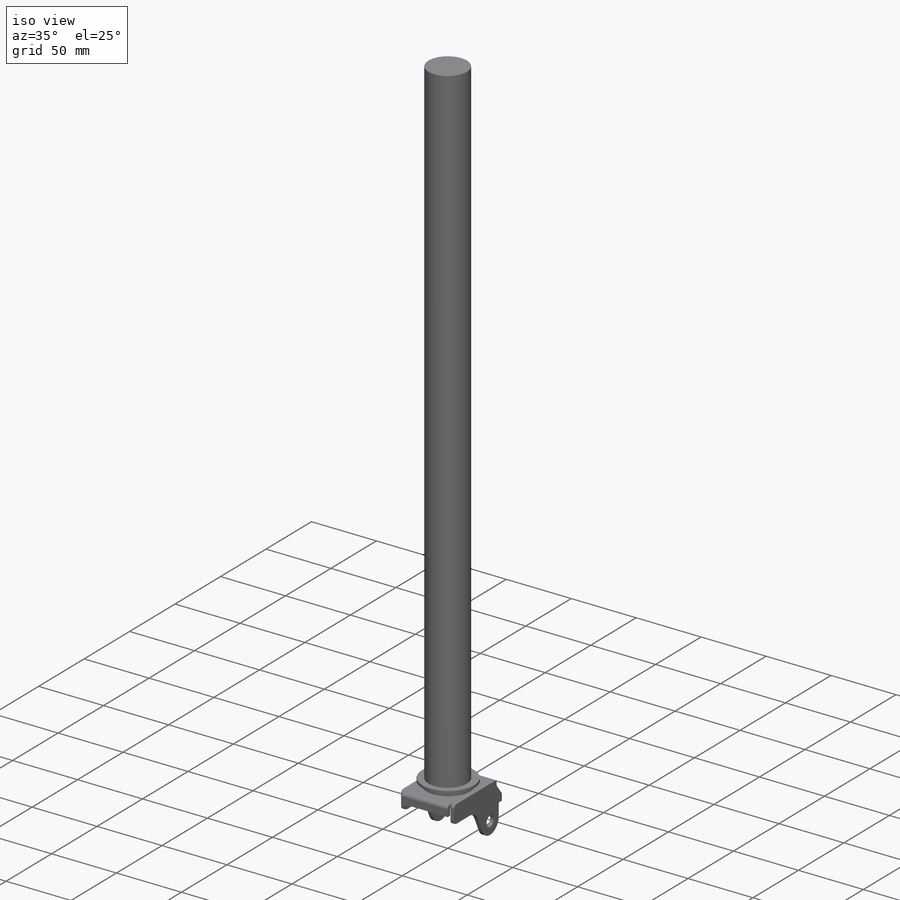
[diagram: iso view]
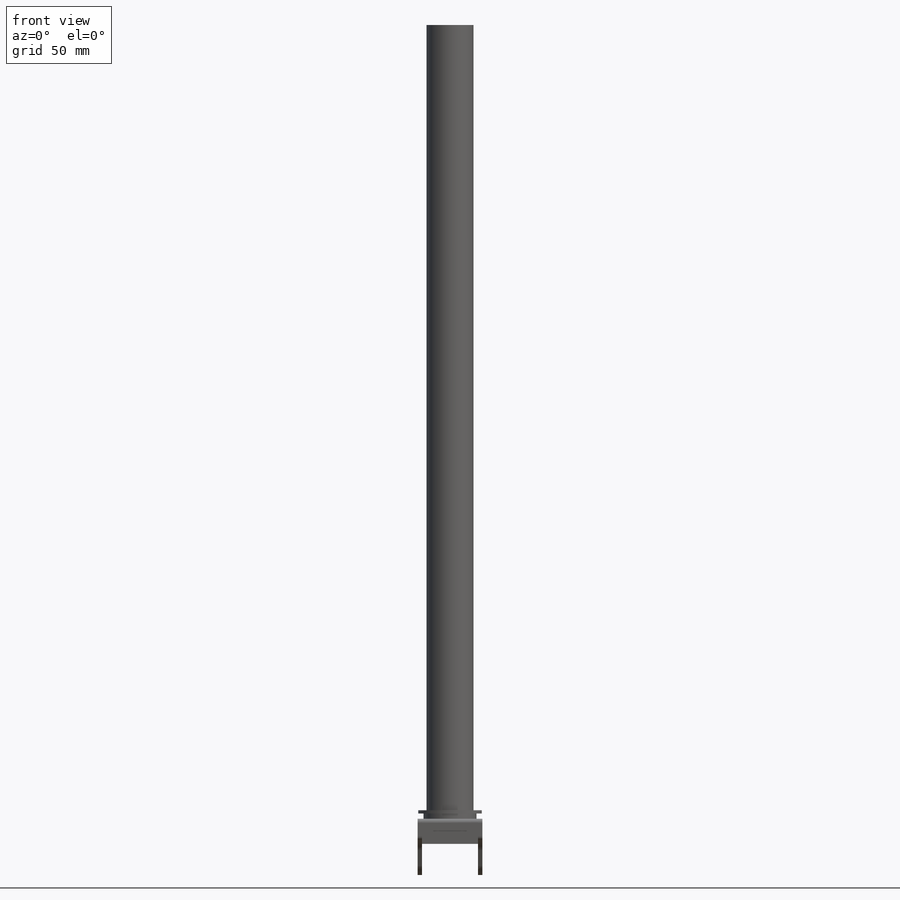
[diagram: front view]
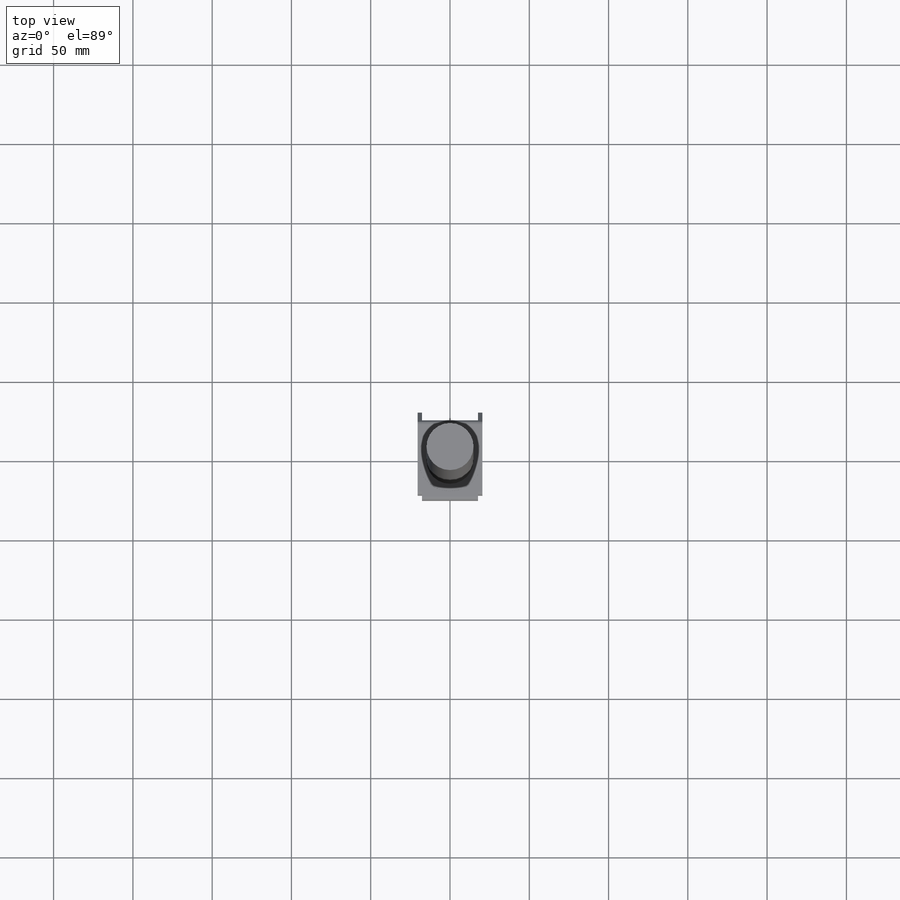
[diagram: top view]
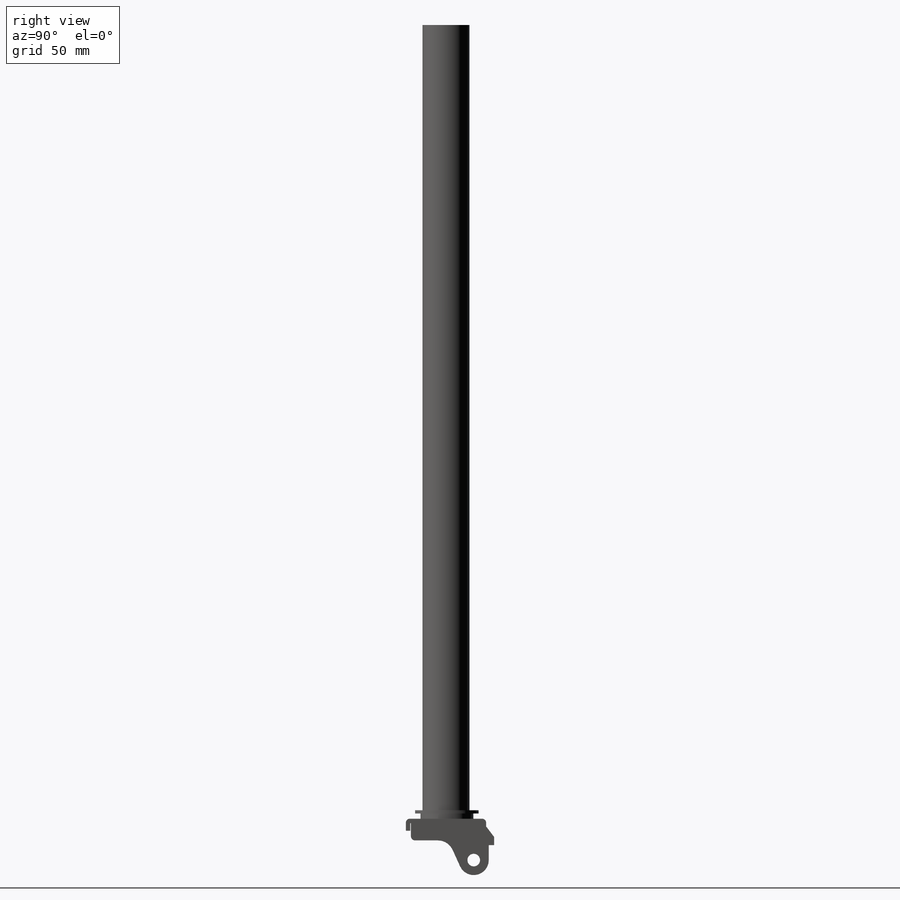
[diagram: right view]
SOLIDWORKS PART (.sldprt)
format: sldprt  version: not decoded by parser v0  size: 413,696 bytes
history: native  units: mm
features: sketch x6, extrude x5, material x1, plane x1, mirror x1, revolve x1, fillet x1 (+11 scaffold rows collapsed)
feature tree (27):
  scaffold x11  (default folders/planes/origin — collapsed)
  material  "Material <not specified>"
  sketch  "Sketch1"  dims[D1=35.2425mm D2=45.085mm]
  extrude  "Boss-Extrude1"  Depth=2.794mm
  sketch  "Sketch3"  dims[D1=7.62mm]
  extrude  "Boss-Extrude2"  Depth=2.794mm
  sketch  "Sketch4"  dims[D1=15.875mm]
  extrude  "Boss-Extrude3"  Depth=2.794mm
  sketch  "Sketch5"  dims[c1.D7=7.9883mm c1.D9=7.9883mm c1.D12=2.54mm c1.D13=10.16mm c1.D1=46.6852mm c1.D2=13.6906mm c1.D3=16.637mm c1.D4=3.8989mm c1.D5=5.08mm c1.D6=52.5018mm c1.D8=26.0985mm c2.D9=5.4864mm c2.D10=3.4036mm c2.D11=23.5966mm c2.D14=0.762mm]
  extrude  "Boss-Extrude5"  Depth=2.794mm
  plane  "Plane1"
  mirror  "Mirror1"
  sketch  "Sketch6"  dims[D1=16.6751mm D2=8.1026mm D3=20.0406mm D4=3.3147mm D5=2.0066mm]
  revolve  "Revolve1"  Angle=360deg
  sketch  "Sketch8"  dims[D1=29.6418mm]
  extrude  "Boss-Extrude6"  Depth=755.65mm
  fillet  "Fillet1"  Radius=2.54mm
decode coverage: 13 of 14 modeling features carry decoded parameters
note: suppression state not decoded; provenance and decode notes live in map.json
